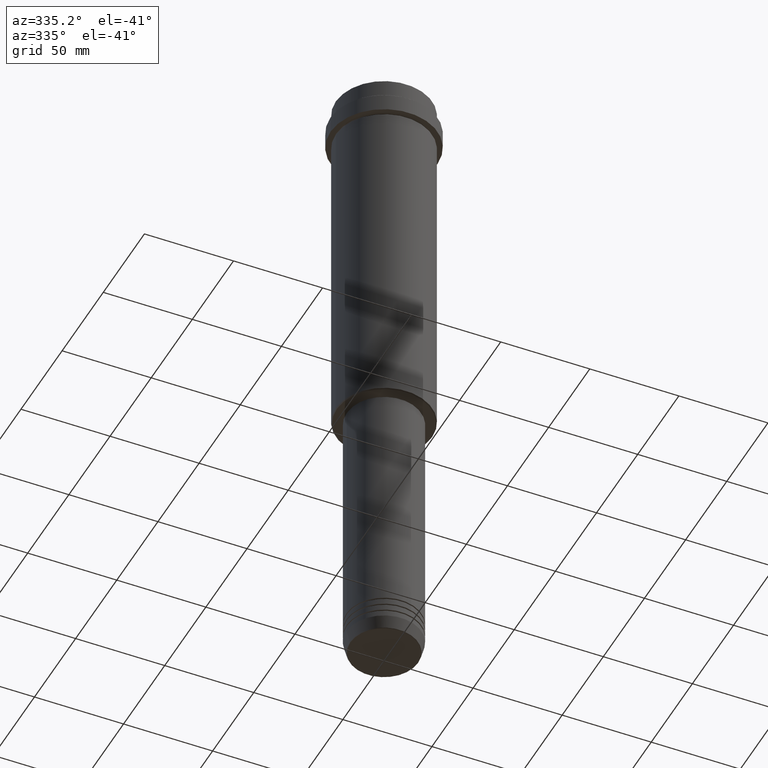
[diagram: clean part render]
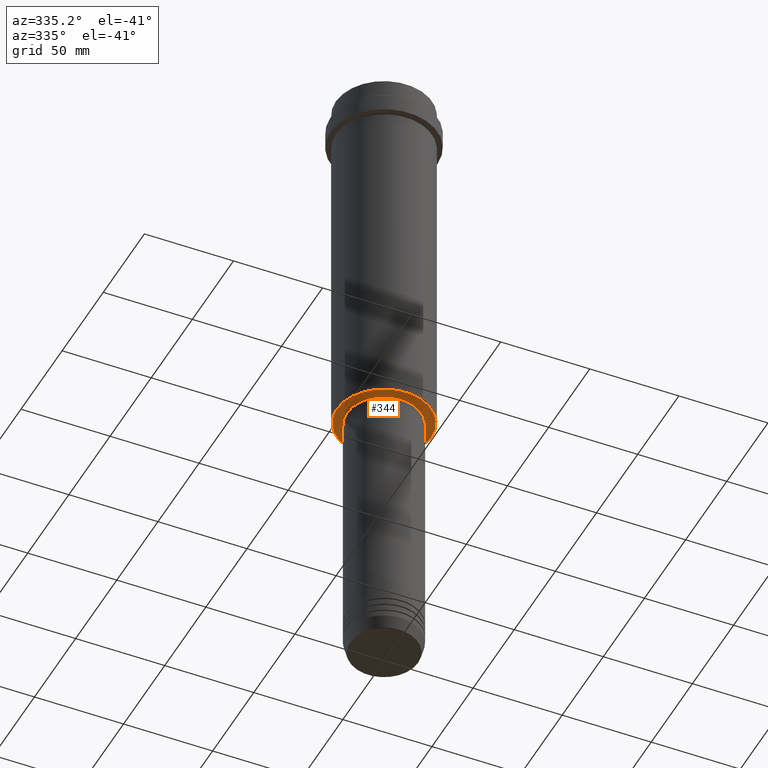
[diagram: same view with one face highlighted and labeled with its STEP entity id]
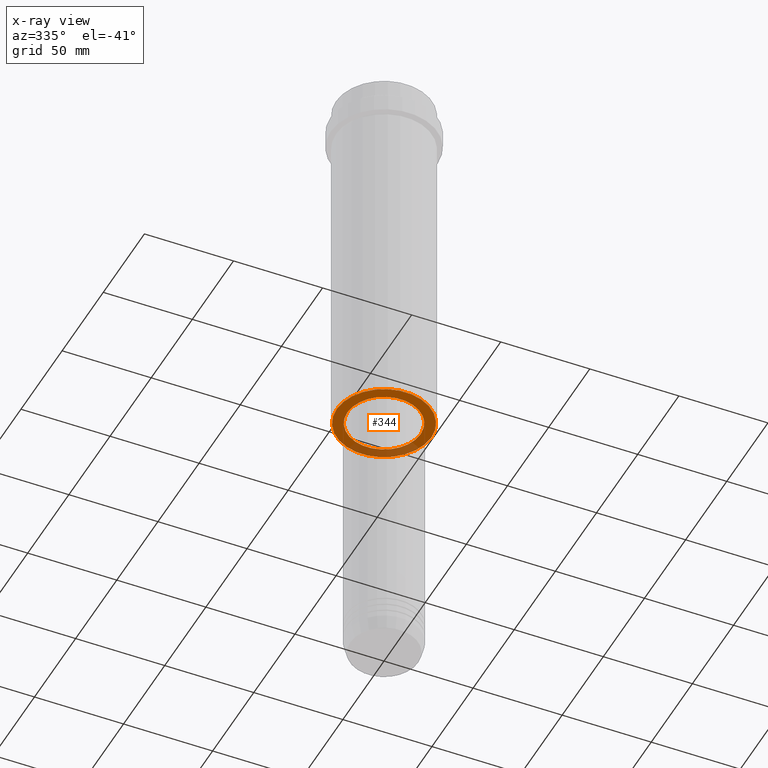
[diagram: x-ray of the same camera — body ghosted, the highlighted face saturated]
A machine part, auxiliary view. The second image highlights one B-rep face of the part: STEP entity #344.
The next image is the same camera in x-ray: the body ghosted, the highlighted face saturated — about 24% of this face is hidden behind the body in this view.
In plain terms, the highlighted planar face has unit normal (0, 0, -1).
Its self-contained STEP definition (entity closure, byte-faithful):
#5 = ORIENTED_EDGE ( 'NONE', *, *, #1391, .T. ) ;
#30 = ORIENTED_EDGE ( 'NONE', *, *, #288, .T. ) ;
#46 = FACE_OUTER_BOUND ( 'NONE', #698, .T. ) ;
#67 = VERTEX_POINT ( 'NONE', #428 ) ;
#137 = DIRECTION ( 'NONE',  ( 1.000000000000000000, 0.000000000000000000, 0.000000000000000000 ) ) ;
#149 = PLANE ( 'NONE',  #179 ) ;
#156 = CIRCLE ( 'NONE', #349, 26.50000000000007816 ) ;
#162 = VERTEX_POINT ( 'NONE', #549 ) ;
#164 = CIRCLE ( 'NONE', #353, 20.50000000000000000 ) ;
#179 = AXIS2_PLACEMENT_3D ( 'NONE', #259, #814, #1129 ) ;
#200 = VERTEX_POINT ( 'NONE', #412 ) ;
#219 = EDGE_CURVE ( 'NONE', #1062, #67, #156, .T. ) ;
#233 = DIRECTION ( 'NONE',  ( 0.000000000000000000, 0.000000000000000000, -1.000000000000000000 ) ) ;
#259 = CARTESIAN_POINT ( 'NONE',  ( 0.000000000000000000, 27.00000000000000000, -208.0000000000000568 ) ) ;
#288 = EDGE_CURVE ( 'NONE', #200, #162, #890, .T. ) ;
#300 = DIRECTION ( 'NONE',  ( 0.000000000000000000, 0.000000000000000000, -1.000000000000000000 ) ) ;
#344 = ADVANCED_FACE ( 'NONE', ( #46, #608 ), #149, .T. ) ;
#349 = AXIS2_PLACEMENT_3D ( 'NONE', #1328, #233, #359 ) ;
#353 = AXIS2_PLACEMENT_3D ( 'NONE', #1230, #1000, #988 ) ;
#359 = DIRECTION ( 'NONE',  ( -1.000000000000000000, 0.000000000000000000, 0.000000000000000000 ) ) ;
#412 = CARTESIAN_POINT ( 'NONE',  ( -20.50000000000000000, 2.510525938252074481E-15, -208.0000000000000284 ) ) ;
#428 = CARTESIAN_POINT ( 'NONE',  ( -26.50000000000007816, 3.275930187719174679E-15, -208.0000000000000568 ) ) ;
#524 = CARTESIAN_POINT ( 'NONE',  ( 0.000000000000000000, 0.000000000000000000, -208.0000000000000568 ) ) ;
#542 = DIRECTION ( 'NONE',  ( -1.000000000000000000, 0.000000000000000000, 0.000000000000000000 ) ) ;
#549 = CARTESIAN_POINT ( 'NONE',  ( 20.50000000000000000, 0.000000000000000000, -208.0000000000000284 ) ) ;
#562 = EDGE_CURVE ( 'NONE', #67, #1062, #996, .T. ) ;
#608 = FACE_BOUND ( 'NONE', #1131, .T. ) ;
#618 = CARTESIAN_POINT ( 'NONE',  ( 26.50000000000007816, 0.000000000000000000, -208.0000000000000568 ) ) ;
#698 = EDGE_LOOP ( 'NONE', ( #1346, #1105 ) ) ;
#814 = DIRECTION ( 'NONE',  ( 0.000000000000000000, 0.000000000000000000, -1.000000000000000000 ) ) ;
#890 = CIRCLE ( 'NONE', #1179, 20.50000000000000000 ) ;
#980 = CARTESIAN_POINT ( 'NONE',  ( 0.000000000000000000, 0.000000000000000000, -208.0000000000000284 ) ) ;
#987 = DIRECTION ( 'NONE',  ( -0.000000000000000000, -0.000000000000000000, 1.000000000000000000 ) ) ;
#988 = DIRECTION ( 'NONE',  ( 1.000000000000000000, 0.000000000000000000, 0.000000000000000000 ) ) ;
#996 = CIRCLE ( 'NONE', #1274, 26.50000000000007816 ) ;
#1000 = DIRECTION ( 'NONE',  ( -0.000000000000000000, -0.000000000000000000, 1.000000000000000000 ) ) ;
#1062 = VERTEX_POINT ( 'NONE', #618 ) ;
#1105 = ORIENTED_EDGE ( 'NONE', *, *, #562, .T. ) ;
#1129 = DIRECTION ( 'NONE',  ( -1.000000000000000000, 0.000000000000000000, -0.000000000000000000 ) ) ;
#1131 = EDGE_LOOP ( 'NONE', ( #5, #30 ) ) ;
#1179 = AXIS2_PLACEMENT_3D ( 'NONE', #980, #987, #137 ) ;
#1230 = CARTESIAN_POINT ( 'NONE',  ( 0.000000000000000000, 0.000000000000000000, -208.0000000000000284 ) ) ;
#1274 = AXIS2_PLACEMENT_3D ( 'NONE', #524, #300, #542 ) ;
#1328 = CARTESIAN_POINT ( 'NONE',  ( 0.000000000000000000, 0.000000000000000000, -208.0000000000000568 ) ) ;
#1346 = ORIENTED_EDGE ( 'NONE', *, *, #219, .T. ) ;
#1391 = EDGE_CURVE ( 'NONE', #162, #200, #164, .T. ) ;